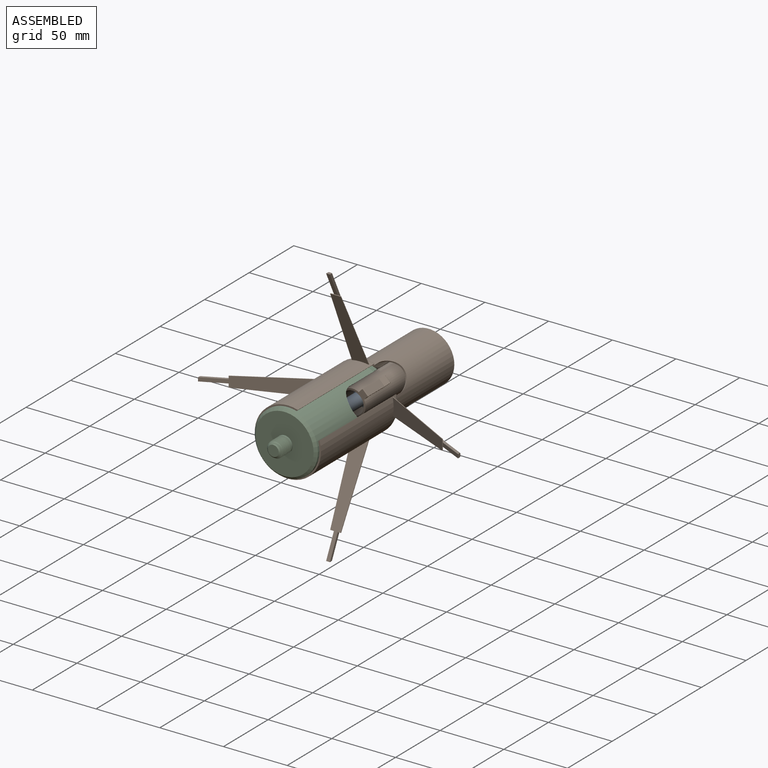
[diagram: assembled view]
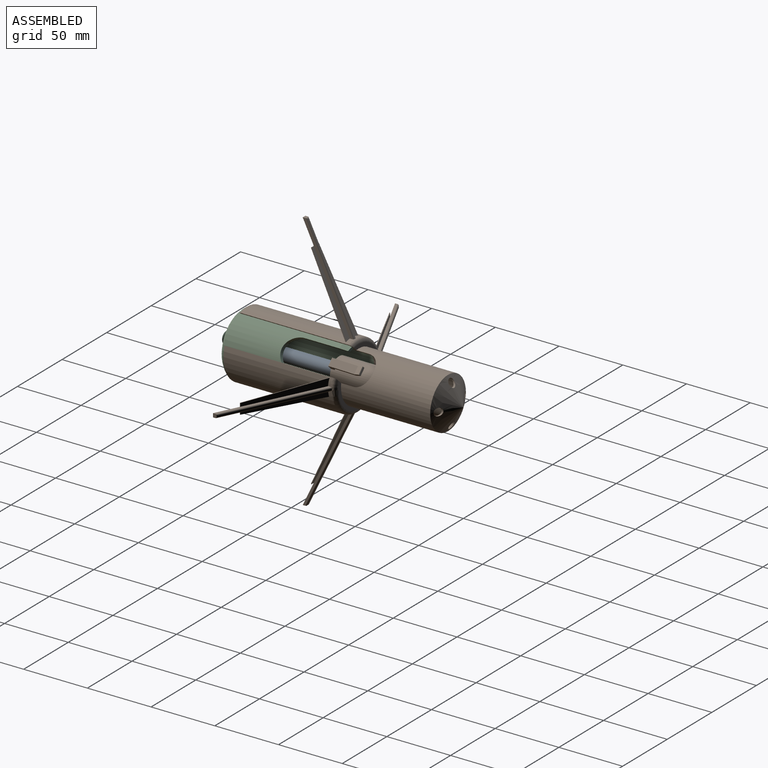
[diagram: assembled view, second angle]
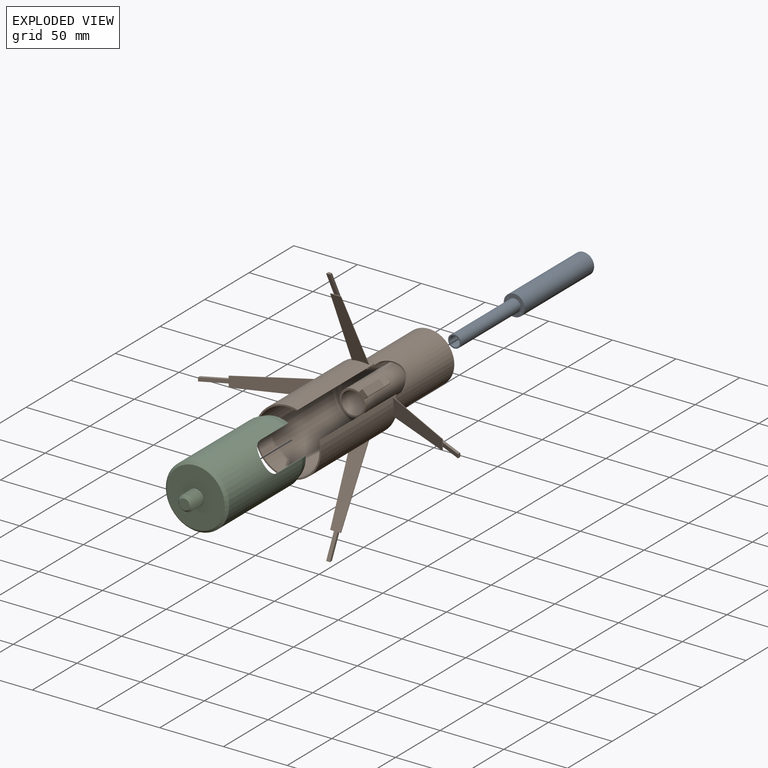
[diagram: exploded view]
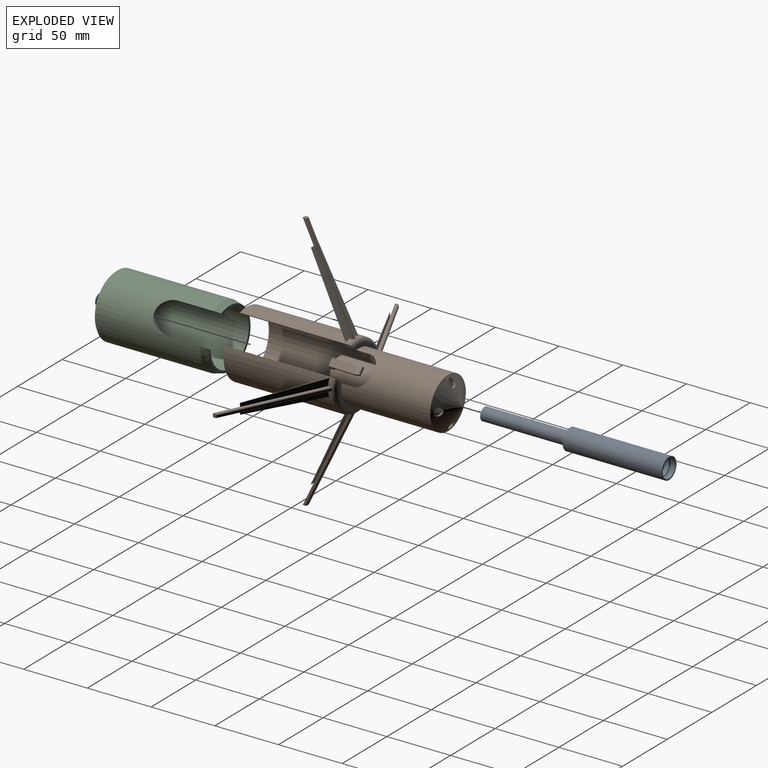
[diagram: exploded view, second angle]
ASSEMBLY  parts=3 mates=2
PART A: 35 faces, bbox 16.8x16.8x144.8 mm
  f0: plane 10x1.3mm, normal (-0.87,0.5,0), area 7.5mm2, adj f2,f20,f34
  f1: plane 0.87x0.5mm, normal (0,0,1), area 0mm2, adj f20,f34
  f2: plane 8x7.97mm, normal (0,0,1), area 45.7mm2, adj f0,f20,f25,f26,f28,f29,f30,f31
  f3: plane 10x10mm, normal (0,0,-1), area 78.5mm2, adj f4
  f4: cylinder r=5mm len=31.6mm, axis (0,0,1), area 992.7mm2, adj f3,f5
  f5: plane 14.5x14.5mm, normal (0,0,-1), area 84.8mm2, adj f4,f6,f21,f22,f23,f24
  f6: cylinder r=7.25mm len=58.05mm, axis (0,0,1), area 2644.4mm2, adj f5,f7
  f7: torus R=7.25mm, axis (0,0,1), area 100.3mm2, adj f6,f8
  f8: cylinder r=7.25mm len=14.5mm, axis (0,0,1), area 125.3mm2, adj f7,f9
  f9: torus R=7.25mm, axis (0,0,1), area 100.3mm2, adj f8,f10
  f10: cylinder r=7.25mm len=14.5mm, axis (0,0,1), area 125.3mm2, adj f9,f11
  f11: torus R=7.25mm, axis (0,0,1), area 100.3mm2, adj f10,f12
  f12: cylinder r=7.25mm len=14.5mm, axis (0,0,1), area 125.3mm2, adj f11,f13
  f13: torus R=7.25mm, axis (0,0,1), area 100.3mm2, adj f12,f14
  f14: cylinder r=7.25mm len=14.5mm, axis (0,0,1), area 182.2mm2, adj f13,f15
  f15: plane 16.5x16.5mm, normal (0,0,-1), area 48.7mm2, adj f14,f16
  f16: cylinder r=8.25mm len=77.8mm, axis (0,0,1), area 4032.9mm2, adj f15,f17
  f17: plane 16.5x16.5mm, normal (0,0,1), area 133.5mm2, adj f16,f18,f21,f22,f23,f24
  f18: cylinder r=5mm len=67mm, axis (0,0,1), area 2104.9mm2, adj f17,f19
  f19: plane 10x10mm, normal (0,0,1), area 28.3mm2, adj f18,f20
  f20: cylinder r=4mm len=99.85mm, axis (0,0,1), area 2479.4mm2, adj f0,f1,f2,f19,f25,f26,f27,f29
  f21: cylinder r=0.38mm len=1.5mm, axis (0,0,1), area 3.5mm2, adj f5,f17
  f22: cylinder r=0.38mm len=1.5mm, axis (0,0,1), area 3.5mm2, adj f5,f17
  f23: cylinder r=0.38mm len=1.5mm, axis (0,0,1), area 3.5mm2, adj f5,f17
  f24: cylinder r=0.38mm len=1.5mm, axis (0,0,1), area 3.5mm2, adj f5,f17
  f25: plane 10x1.5mm, normal (0,1,0), area 7.5mm2, adj f2,f20,f28
  f26: plane 10x1.5mm, normal (0,-1,0), area 7.5mm2, adj f2,f20,f28
  f27: plane 1x0.03mm, normal (0,0,1), area 0mm2, adj f20,f28
  f28: plane 10x1.5mm, normal (0.99,0,0.15), area 10.1mm2, adj f2,f25,f26,f27
  f29: plane 10x1.3mm, normal (0.87,-0.5,0), area 7.5mm2, adj f2,f20,f34
  f30: plane 10x1.3mm, normal (-0.87,-0.5,0), area 7.5mm2, adj f2,f20,f33
  f31: plane 10x1.3mm, normal (0.87,0.5,0), area 7.5mm2, adj f2,f20,f33
  f32: plane 0.87x0.5mm, normal (0,0,1), area 0mm2, adj f20,f33
  f33: plane 10x1.8mm, normal (-0.49,0.86,0.15), area 10.1mm2, adj f2,f30,f31,f32
  f34: plane 10x1.8mm, normal (-0.49,-0.86,0.15), area 10.1mm2, adj f0,f1,f2,f29
PART B: 118 faces, bbox 205.6x205.6x170.8 mm
  f0: plane 1.45x1.01mm, normal (0,0,1), area 0.5mm2, adj f5,f6,f33,f35
  f1: plane 4.07x4.04mm, normal (0,0,1), area 6.5mm2, adj f2,f3,f4,f5
  f2: bspline ~7x3.46mm, area 27.6mm2, adj f1,f3,f5,f33
  f3: plane 7x2.01mm, normal (0.87,-0.5,-0.04), area 10.5mm2, adj f1,f2,f4,f9
  f4: bspline ~7x4.01mm, area 33.2mm2, adj f1,f3,f5,f35
  f5: plane 7x2.01mm, normal (-0.5,0.87,-0.04), area 10.5mm2, adj f0,f1,f2,f4
  f6: plane 8x1.3mm, normal (0.5,-0.87,0), area 12mm2, adj f0,f8,f33,f35
  f7: plane 8x1.3mm, normal (-0.87,0.5,0), area 12mm2, adj f8,f9,f33,f35
  f8: plane 4.47x4.44mm, normal (0,0,-1), area 7.4mm2, adj f6,f7,f33,f35
  f9: plane 1.46x1.01mm, normal (0,0,1), area 0.5mm2, adj f3,f7,f33,f35
  f10: plane 1.45x1.01mm, normal (0,0,1), area 0.5mm2, adj f33,f35,f109,f114
  f11: cone r=10.25mm half-angle=59deg, axis (0,0,-1), area 778.2mm2, adj f35,f36,f89,f90,f91,f92
  f12: cylinder r=26mm len=85mm, axis (0,0,1), area 11699.5mm2, adj f16,f17,f22,f25,f27,f30,f38,f40
  f13: plane 46x46mm, normal (0,0,-1), area 444.1mm2, adj f14,f36,f74,f75
  f14: torus R=23mm, axis (0,0,1), area 357mm2, adj f13,f15,f74,f75
  f15: cylinder r=24.8mm len=85mm, axis (0,0,1), area 11115.6mm2, adj f14,f16,f74,f75
  f16: plane 52x52mm, normal (0,0,-1), area 161.5mm2, adj f12,f15,f74,f75
  f17: torus R=23mm, axis (0,0,1), area 617mm2, adj f12,f18,f39,f48,f57,f66,f74,f75
  f18: plane 46x46mm, normal (0,0,1), area 328.8mm2, adj f17,f19,f74,f75
  f19: cylinder r=20mm len=70mm, axis (0,0,1), area 8314.5mm2, adj f18,f37,f74,f75,f76
  f20: plane 17.98x8.75mm, normal (0,-0.44,-0.9), area 60mm2, adj f21,f22,f65,f71
  f21: plane 3.01x2.38mm, normal (0,1,0), area 7.1mm2, adj f20,f22,f65,f77,f78,f79
  f22: plane 76.04x38.89mm, normal (-1,0,0), area 143.6mm2, adj f12,f20,f21,f69,f79
  f23: plane 17.98x8.75mm, normal (0.44,0,-0.9), area 60mm2, adj f24,f25,f56,f62
  f24: plane 3.01x2.38mm, normal (-1,0,0), area 7.1mm2, adj f23,f25,f56,f80,f81,f82
  f25: plane 76.04x38.89mm, normal (0,-1,0), area 143.6mm2, adj f12,f23,f24,f60,f82
  f26: plane 17.98x8.75mm, normal (0,0.44,-0.9), area 60mm2, adj f27,f28,f47,f53
  f27: plane 76.04x38.89mm, normal (1,0,0), area 143.6mm2, adj f12,f26,f28,f51,f85
  f28: plane 3.01x2.38mm, normal (0,-1,0), area 7.1mm2, adj f26,f27,f47,f83,f84,f85
  f29: plane 17.98x8.75mm, normal (-0.44,0,-0.9), area 60mm2, adj f30,f31,f38,f44
  f30: plane 76.04x38.89mm, normal (0,1,0), area 143.6mm2, adj f12,f29,f31,f42,f88
  f31: plane 3.01x2.38mm, normal (1,0,0), area 7.1mm2, adj f29,f30,f38,f86,f87,f88
  f32: cone r=0mm half-angle=59deg, axis (0,0,-1), area 280.5mm2, adj f33
  f33: cylinder r=8.75mm len=90.9mm, axis (0,0,1), area 4925.3mm2, adj f0,f2,f6,f7,f8,f9,f10,f32
  f34: plane 20.52x20.52mm, normal (0,0,-1), area 89.6mm2, adj f33,f35,f103
  f35: cylinder r=10.25mm len=90mm, axis (0,0,1), area 5693.2mm2, adj f0,f4,f6,f7,f8,f9,f10,f11
  f36: cylinder r=18.8mm len=70.52mm, axis (0,0,1), area 7812.6mm2, adj f11,f13,f74,f75,f76
  f37: cone r=0mm half-angle=59deg, axis (0,0,-1), area 1333.6mm2, adj f19,f89,f90,f91,f92
  f38: plane 76.04x38.89mm, normal (0,-1,0), area 143.6mm2, adj f12,f29,f31,f41,f86
  f39: plane 3x0.04mm, normal (0,0,-1), area 0.1mm2, adj f17,f40
  f40: plane 75.49x36.73mm, normal (0.44,0,0.9), area 84mm2, adj f12,f39,f86,f87,f88
  f41: plane 59.17x28.87mm, normal (0.44,0,0.9), area 268mm2, adj f12,f38,f44,f45
  f42: plane 58.86x28.69mm, normal (0.44,0,0.9), area 236.2mm2, adj f12,f30,f43,f44
  f43: plane 58.76x29.04mm, normal (0.03,1,-0.01), area 32.6mm2, adj f12,f42,f44,f46
  f44: plane 8.27x0.45mm, normal (0.9,0,-0.44), area 4.1mm2, adj f29,f41,f42,f43,f45,f46
  f45: plane 59.02x29.16mm, normal (0.04,-1,-0.02), area 32.8mm2, adj f12,f41,f44,f46
  f46: plane 58.79x28.61mm, normal (-0.44,0,-0.9), area 694.5mm2, adj f12,f43,f44,f45
  f47: plane 76.04x38.89mm, normal (-1,0,0), area 143.6mm2, adj f12,f26,f28,f50,f83
  f48: plane 3x0.04mm, normal (0,0,-1), area 0.1mm2, adj f17,f49
  f49: plane 75.49x36.73mm, normal (0,-0.44,0.9), area 84mm2, adj f12,f48,f83,f84,f85
  f50: plane 59.17x28.87mm, normal (0,-0.44,0.9), area 268mm2, adj f12,f47,f53,f54
  f51: plane 58.86x28.69mm, normal (0,-0.44,0.9), area 236.2mm2, adj f12,f27,f52,f53
  f52: plane 58.76x29.04mm, normal (1,-0.03,-0.01), area 32.6mm2, adj f12,f51,f53,f55
  f53: plane 8.27x0.45mm, normal (0,-0.9,-0.44), area 4.1mm2, adj f26,f50,f51,f52,f54,f55
  f54: plane 59.02x29.16mm, normal (-1,-0.04,-0.02), area 32.8mm2, adj f12,f50,f53,f55
  f55: plane 58.79x28.61mm, normal (0,0.44,-0.9), area 694.5mm2, adj f12,f52,f53,f54
  f56: plane 76.04x38.89mm, normal (0,1,0), area 143.6mm2, adj f12,f23,f24,f59,f80
  f57: plane 3x0.04mm, normal (0,0,-1), area 0.1mm2, adj f17,f58
  f58: plane 75.49x36.73mm, normal (-0.44,0,0.9), area 84mm2, adj f12,f57,f80,f81,f82
  f59: plane 59.17x28.87mm, normal (-0.44,0,0.9), area 268mm2, adj f12,f56,f62,f63
  f60: plane 58.86x28.69mm, normal (-0.44,0,0.9), area 236.2mm2, adj f12,f25,f61,f62
  f61: plane 58.76x29.04mm, normal (-0.03,-1,-0.01), area 32.6mm2, adj f12,f60,f62,f64
  f62: plane 8.27x0.45mm, normal (-0.9,0,-0.44), area 4.1mm2, adj f23,f59,f60,f61,f63,f64
  f63: plane 59.02x29.16mm, normal (-0.04,1,-0.02), area 32.8mm2, adj f12,f59,f62,f64
  f64: plane 58.79x28.61mm, normal (0.44,0,-0.9), area 694.5mm2, adj f12,f61,f62,f63
  f65: plane 76.04x38.89mm, normal (1,0,0), area 143.6mm2, adj f12,f20,f21,f68,f77
  f66: plane 3x0.04mm, normal (0,0,-1), area 0.1mm2, adj f17,f67
  f67: plane 75.49x36.73mm, normal (0,0.44,0.9), area 84mm2, adj f12,f66,f77,f78,f79
  f68: plane 59.17x28.87mm, normal (0,0.44,0.9), area 268mm2, adj f12,f65,f71,f72
  f69: plane 58.86x28.69mm, normal (0,0.44,0.9), area 236.2mm2, adj f12,f22,f70,f71
  f70: plane 58.76x29.04mm, normal (-1,0.03,-0.01), area 32.6mm2, adj f12,f69,f71,f73
  f71: plane 8.27x0.45mm, normal (0,0.9,-0.44), area 4.1mm2, adj f20,f68,f69,f70,f72,f73
  f72: plane 59.02x29.16mm, normal (1,0.04,-0.02), area 32.8mm2, adj f12,f68,f71,f73
  f73: plane 58.79x28.61mm, normal (0,-0.44,-0.9), area 694.5mm2, adj f12,f70,f71,f72
  f74: plane 98.24x6.85mm, normal (-0.71,-0.71,0), area 141.6mm2, adj f12,f13,f14,f15,f16,f17,f18,f19
  f75: plane 98.24x6.85mm, normal (0.71,0.71,0), area 141.6mm2, adj f12,f13,f14,f15,f16,f17,f18,f19
  f76: cylinder r=12mm len=20.88mm, axis (0.71,-0.71,0), area 50.8mm2, adj f19,f36,f74,f75
  f77: cylinder r=1mm len=76.88mm, axis (0,-0.9,0.44), area 132.4mm2, adj f12,f21,f65,f67,f78
  f78: cylinder r=1mm len=2.8mm, axis (-1,0,0), area 2.1mm2, adj f21,f67,f77,f79
  f79: cylinder r=1mm len=76.88mm, axis (0,-0.9,0.44), area 132.4mm2, adj f12,f21,f22,f67,f78
  f80: cylinder r=1mm len=76.88mm, axis (0.9,0,0.44), area 132.4mm2, adj f12,f24,f56,f58,f81
  f81: cylinder r=1mm len=2.8mm, axis (0,-1,0), area 2.1mm2, adj f24,f58,f80,f82
  f82: cylinder r=1mm len=76.88mm, axis (0.9,0,0.44), area 132.4mm2, adj f12,f24,f25,f58,f81
  f83: cylinder r=1mm len=76.88mm, axis (0,0.9,0.44), area 132.4mm2, adj f12,f28,f47,f49,f84
  f84: cylinder r=1mm len=2.8mm, axis (1,0,0), area 2.1mm2, adj f28,f49,f83,f85
  f85: cylinder r=1mm len=76.88mm, axis (0,0.9,0.44), area 132.4mm2, adj f12,f27,f28,f49,f84
  f86: cylinder r=1mm len=76.88mm, axis (-0.9,0,0.44), area 132.4mm2, adj f12,f31,f38,f40,f87
  f87: cylinder r=1mm len=2.8mm, axis (0,1,0), area 2.1mm2, adj f31,f40,f86,f88
  f88: cylinder r=1mm len=76.88mm, axis (-0.9,0,0.44), area 132.4mm2, adj f12,f30,f31,f40,f87
  f89: cylinder r=3mm len=6mm, axis (0,0,1), area 26.4mm2, adj f11,f37
  f90: cylinder r=3mm len=6mm, axis (0,0,1), area 25.9mm2, adj f11,f37
  f91: cylinder r=3mm len=6mm, axis (0,0,1), area 26.4mm2, adj f11,f37
  f92: cylinder r=3mm len=6mm, axis (0,0,1), area 27.5mm2, adj f11,f37
  f93: plane 6.31x6.31mm, normal (0,0,-1), area 17.5mm2, adj f100,f101,f103,f104
  f94: plane 19.29x5.19mm, normal (0.71,-0.71,0.07), area 116mm2, adj f100,f101,f104,f105
  f95: plane 5.56x5.56mm, normal (0.64,-0.64,-0.43), area 26.2mm2, adj f100,f101,f105,f106
  f96: plane 4.88x4.88mm, normal (0.3,-0.3,0.9), area 6mm2, adj f100,f101,f106,f107
  f97: plane 5.76x5.76mm, normal (-0.64,0.64,0.43), area 30.1mm2, adj f98,f100,f101,f107
  f98: plane 16.8x5.07mm, normal (-0.71,0.71,-0.07), area 101mm2, adj f97,f100,f101,f108
  f99: plane 4.71x4.71mm, normal (0,0,1), area 4mm2, adj f100,f101,f102,f108
  f100: plane 25.16x3.71mm, normal (-0.71,-0.71,0), area 58.5mm2, adj f35,f93,f94,f95,f96,f97,f98,f99
  f101: plane 25.16x3.71mm, normal (0.71,0.71,0), area 58.5mm2, adj f35,f93,f94,f95,f96,f97,f98,f99
  f102: plane 5.14x5.14mm, normal (0.01,-0.01,1), area 5.7mm2, adj f35,f99,f100,f101
  f103: plane 5.11x5.11mm, normal (-0.01,0.01,-1), area 5.4mm2, adj f34,f93,f100,f101
  f104: cylinder r=0.5mm len=4.6mm, axis (0.71,0.71,0), area 4.9mm2, adj f93,f94,f100,f101
  f105: cylinder r=0.5mm len=4.28mm, axis (-0.71,-0.71,0), area 1.5mm2, adj f94,f95,f100,f101
  f106: cylinder r=0.5mm len=4.45mm, axis (0.71,0.71,0), area 4.7mm2, adj f95,f96,f100,f101
  f107: cylinder r=0.5mm len=4.71mm, axis (0.71,0.71,0), area 4.7mm2, adj f96,f97,f100,f101
  f108: cylinder r=0.5mm len=4.6mm, axis (-0.71,-0.71,0), area 4.9mm2, adj f98,f99,f100,f101
  f109: plane 8x1.3mm, normal (-0.5,0.87,0), area 12mm2, adj f10,f33,f35,f112
  f110: plane 8x1.3mm, normal (0.87,-0.5,0), area 12mm2, adj f33,f35,f111,f112
  f111: plane 1.46x1.01mm, normal (0,0,1), area 0.5mm2, adj f33,f35,f110,f116
  f112: plane 4.47x4.44mm, normal (0,0,-1), area 7.4mm2, adj f33,f35,f109,f110
  f113: plane 4.07x4.04mm, normal (0,0,1), area 6.5mm2, adj f114,f115,f116,f117
  f114: plane 7x2.01mm, normal (0.5,-0.87,-0.04), area 10.5mm2, adj f10,f113,f115,f117
  f115: bspline ~7x4.01mm, area 33.2mm2, adj f35,f113,f114,f116
  f116: plane 7x2.01mm, normal (-0.87,0.5,-0.04), area 10.5mm2, adj f111,f113,f115,f117
  f117: bspline ~7x3.46mm, area 27.6mm2, adj f33,f113,f114,f116
PART C: 22 faces, bbox 49.6x49.6x103.4 mm
  f0: plane 46.6x43.27mm, normal (0,0,-1), area 229.5mm2, adj f1,f3,f20,f21
  f1: cone r=24.8mm half-angle=14deg, axis (0,0,1), area 779mm2, adj f0,f2,f20,f21
  f2: cylinder r=24.8mm len=82mm, axis (0,0,1), area 11950.8mm2, adj f1,f4,f19,f20,f21
  f3: cylinder r=21.3mm len=86.5mm, axis (0,0,1), area 10582.2mm2, adj f0,f6,f19,f20,f21
  f4: cone r=22.8mm half-angle=45deg, axis (0,0,-1), area 423mm2, adj f2,f5
  f5: plane 45.6x45.6mm, normal (0,0,1), area 1510.4mm2, adj f4,f12
  f6: plane 42.6x42.6mm, normal (0,0,-1), area 1425.3mm2, adj f3
  f7: cylinder r=6.25mm len=12.46mm, axis (0,0,-1), area 1.3mm2, adj f8,f14,f17,f18
  f8: cylinder r=6.25mm len=12.5mm, axis (0,0,-1), area 2.7mm2, adj f7,f9,f17,f18
  f9: cylinder r=6.25mm len=12.5mm, axis (0,0,-1), area 2.7mm2, adj f8,f10,f17,f18
  f10: cylinder r=6.25mm len=12.5mm, axis (0,0,-1), area 2.7mm2, adj f9,f11,f17,f18
  f11: cylinder r=6.25mm len=12.5mm, axis (0,0,-1), area 2.7mm2, adj f10,f12,f17,f18
  f12: cylinder r=6.25mm len=12.5mm, axis (0,0,-1), area 40.6mm2, adj f5,f11,f16,f17
  f13: plane 8.5x8.5mm, normal (0,0,1), area 56.7mm2, adj f15
  f14: cone r=4.25mm half-angle=45deg, axis (0,0,-1), area 11.2mm2, adj f7,f15,f17,f18
  f15: cone r=4.25mm half-angle=45deg, axis (0,0,-1), area 42.3mm2, adj f13,f14,f18
  f16: plane 1.88x1.63mm, normal (0,-1,0), area 1.5mm2, adj f12,f17,f18
  f17: bspline ~14.57x12.7mm, area 361.6mm2, adj f7,f8,f9,f10,f11,f12,f14,f16
  f18: bspline ~14.57x12.7mm, area 329.1mm2, adj f7,f8,f9,f10,f11,f14,f15,f16
  f19: cylinder r=12mm len=24mm, axis (-1,0,0), area 143.4mm2, adj f2,f3,f20,f21
  f20: plane 33.03x4.14mm, normal (0,1,0), area 130.3mm2, adj f0,f1,f2,f3,f19
  f21: plane 33.03x4.14mm, normal (0,-1,0), area 130.3mm2, adj f0,f1,f2,f3,f19
PLACE A rot(axis=(0.25,-0.69,0.69),152.4deg) t=(0,33.49,-12.47)mm
PLACE B rot(axis=(-1,0,0),90deg) t=(0,12.47,-12.47)mm fixed
PLACE C rot(axis=(0.92,-0.28,0.28),95.1deg) t=(0,-60.05,-12.47)mm
MATE cylindrical B.f11 <-> C.f1  axis (0,1,0) through (0,-85,-12.47)mm
MATE cylindrical A.f4 <-> B.f11  axis (0,-1,0) through (0,78.19,-12.47)mm
